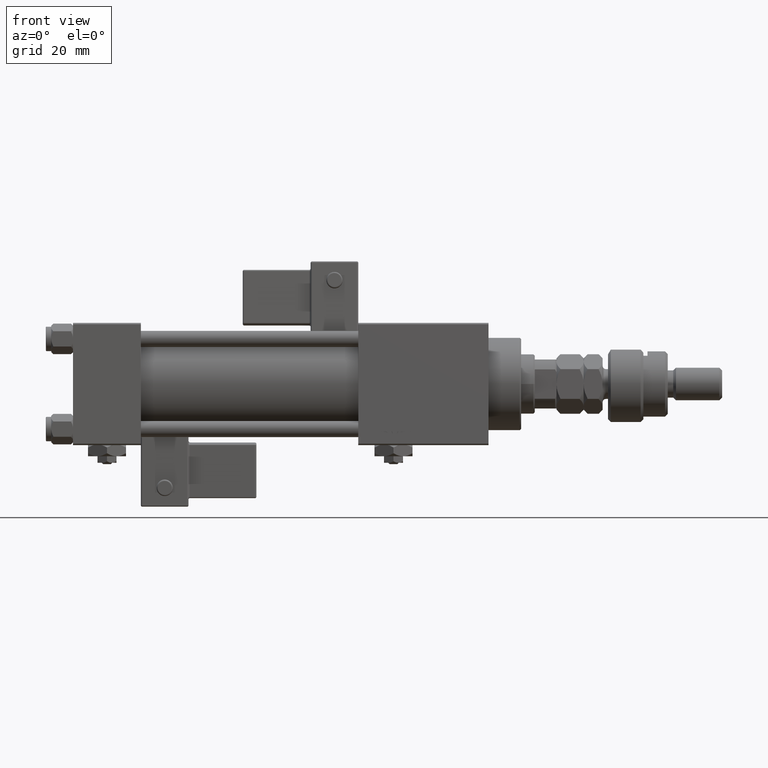
[diagram: clean part render]
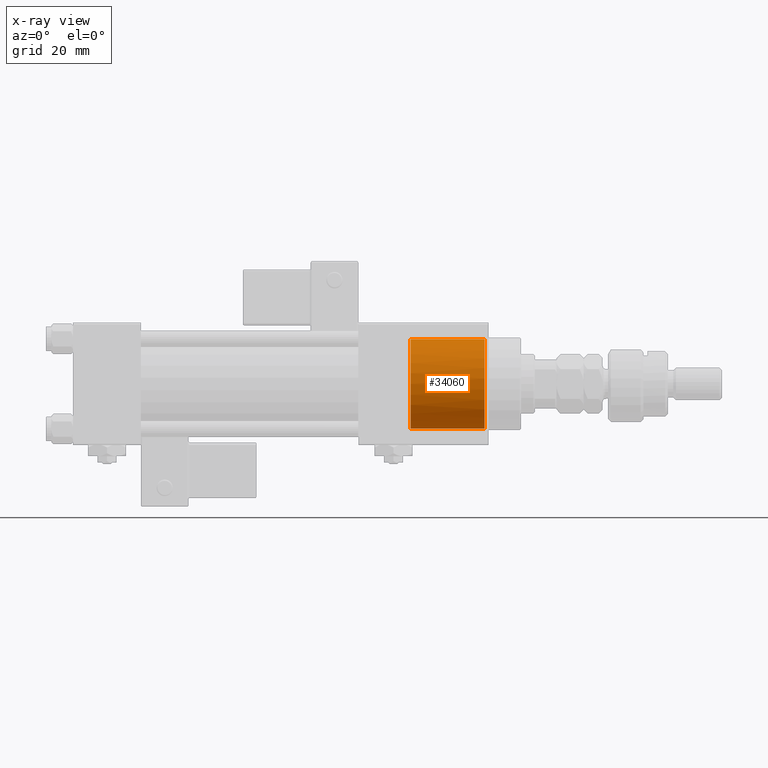
[diagram: x-ray — body ghosted, one internal face saturated and labeled with its STEP entity id]
A machine part, front view, then the same camera in x-ray: the body is ghosted and one INTERNAL B-rep face — a face not visible from any outside direction — is saturated and labeled: STEP entity #34060.
In plain terms, the highlighted cylindrical surface (partial cylindrical patch) has radius 16.5 mm, axis along (1, 0, 0).
Its self-contained STEP definition (entity closure, byte-faithful):
#26 = ORIENTED_EDGE ( 'NONE', *, *, #34324, .T. ) ;
#283 = CARTESIAN_POINT ( 'NONE',  ( 124.3000000000000256, -1.899052395275035776, -16.39035081991841380 ) ) ;
#345 = DIRECTION ( 'NONE',  ( 1.000000000000000000, -0.000000000000000000, -0.000000000000000000 ) ) ;
#2883 = CARTESIAN_POINT ( 'NONE',  ( 124.5800000000000125, 2.020172399822898567E-15, 16.50000000000000000 ) ) ;
#5055 = VERTEX_POINT ( 'NONE', #51792 ) ;
#5292 = EDGE_CURVE ( 'NONE', #28690, #5055, #10509, .T. ) ;
#6576 = CARTESIAN_POINT ( 'NONE',  ( 124.5800000000000125, -0.3226077776615700610, -16.49999999999999645 ) ) ;
#8065 = CARTESIAN_POINT ( 'NONE',  ( 124.3000000000000256, 0.000000000000000000, 0.000000000000000000 ) ) ;
#8328 = CARTESIAN_POINT ( 'NONE',  ( 124.3000000000000256, 2.020667218593133100E-15, 16.50000000000000000 ) ) ;
#8890 = EDGE_CURVE ( 'NONE', #28690, #22318, #53989, .T. ) ;
#9420 = VECTOR ( 'NONE', #26338, 1000.000000000000000 ) ;
#9680 = ORIENTED_EDGE ( 'NONE', *, *, #8890, .T. ) ;
#10020 = CARTESIAN_POINT ( 'NONE',  ( 124.3928892406244984, -1.590897540048155312, 16.42605488887727461 ) ) ;
#10509 = LINE ( 'NONE', #11082, #28980 ) ;
#10882 = CIRCLE ( 'NONE', #51680, 16.50000000000000000 ) ;
#11082 = CARTESIAN_POINT ( 'NONE',  ( 124.3000000000000256, 0.000000000000000000, -16.50000000000000000 ) ) ;
#11219 = CARTESIAN_POINT ( 'NONE',  ( 124.4625232366521175, -1.278516620530486980, -16.45344826064653176 ) ) ;
#11805 = VERTEX_POINT ( 'NONE', #21110 ) ;
#13073 = AXIS2_PLACEMENT_3D ( 'NONE', #36050, #345, #55147 ) ;
#13564 = LINE ( 'NONE', #8328, #9420 ) ;
#16292 = CARTESIAN_POINT ( 'NONE',  ( 124.5800000000000125, -4.948187961943675981E-19, -16.50000000000000000 ) ) ;
#17870 = CARTESIAN_POINT ( 'NONE',  ( 124.3000000000000256, -1.899052395275042660, 16.39035081991841380 ) ) ;
#18033 = DIRECTION ( 'NONE',  ( 1.000000000000000000, 0.000000000000000000, 0.000000000000000000 ) ) ;
#18161 = CARTESIAN_POINT ( 'NONE',  ( 124.4625232366521175, -1.278516620530491421, 16.45344826064653176 ) ) ;
#18742 = VERTEX_POINT ( 'NONE', #2883 ) ;
#21110 = CARTESIAN_POINT ( 'NONE',  ( 151.5000000000000284, 2.020667218593133100E-15, 16.50000000000000000 ) ) ;
#22066 = AXIS2_PLACEMENT_3D ( 'NONE', #44458, #18033, #26753 ) ;
#22220 = CARTESIAN_POINT ( 'NONE',  ( 124.5800000000000125, -0.3226077776615698389, 16.49999999999999645 ) ) ;
#22318 = VERTEX_POINT ( 'NONE', #283 ) ;
#22515 = EDGE_CURVE ( 'NONE', #41900, #22318, #10882, .T. ) ;
#23994 = CARTESIAN_POINT ( 'NONE',  ( 124.5800000000000125, -4.948187961943675981E-19, -16.50000000000000000 ) ) ;
#24287 = CARTESIAN_POINT ( 'NONE',  ( 124.5560906815446600, -0.6453575044926550541, -16.49042383039745374 ) ) ;
#24556 = EDGE_CURVE ( 'NONE', #11805, #5055, #52715, .T. ) ;
#24635 = DIRECTION ( 'NONE',  ( 0.000000000000000000, 0.000000000000000000, -1.000000000000000000 ) ) ;
#26338 = DIRECTION ( 'NONE',  ( 1.000000000000000000, -0.000000000000000000, -0.000000000000000000 ) ) ;
#26753 = DIRECTION ( 'NONE',  ( 0.000000000000000000, 0.000000000000000000, 1.000000000000000000 ) ) ;
#28690 = VERTEX_POINT ( 'NONE', #16292 ) ;
#28945 = CARTESIAN_POINT ( 'NONE',  ( 124.3000000000000256, -1.899052395275035776, -16.39035081991841380 ) ) ;
#28980 = VECTOR ( 'NONE', #46224, 1000.000000000000000 ) ;
#29298 = ORIENTED_EDGE ( 'NONE', *, *, #5292, .F. ) ;
#33845 = B_SPLINE_CURVE_WITH_KNOTS ( 'NONE', 3,
 ( #54468, #22220, #39943, #18161, #10020, #17870 ),
 .UNSPECIFIED., .F., .F.,
 ( 4, 2, 4 ),
 ( 0.001922561461481036042, 0.002880296703329132419, 0.003838031945177228579 ),
 .UNSPECIFIED. ) ;
#34060 = ADVANCED_FACE ( 'NONE', ( #35762 ), #50769, .F. ) ;
#34324 = EDGE_CURVE ( 'NONE', #18742, #11805, #13564, .T. ) ;
#35757 = ORIENTED_EDGE ( 'NONE', *, *, #22515, .F. ) ;
#35762 = FACE_OUTER_BOUND ( 'NONE', #50415, .T. ) ;
#36050 = CARTESIAN_POINT ( 'NONE',  ( 124.3000000000000256, 0.000000000000000000, 0.000000000000000000 ) ) ;
#37550 = EDGE_CURVE ( 'NONE', #18742, #41900, #33845, .T. ) ;
#39132 = DIRECTION ( 'NONE',  ( 1.000000000000000000, 0.000000000000000000, 0.000000000000000000 ) ) ;
#39943 = CARTESIAN_POINT ( 'NONE',  ( 124.5560906815446600, -0.6453575044926566084, 16.49042383039745374 ) ) ;
#40653 = ORIENTED_EDGE ( 'NONE', *, *, #37550, .F. ) ;
#41900 = VERTEX_POINT ( 'NONE', #53923 ) ;
#41950 = ORIENTED_EDGE ( 'NONE', *, *, #24556, .T. ) ;
#42001 = CARTESIAN_POINT ( 'NONE',  ( 124.3928892406244984, -1.590897540048149539, -16.42605488887727461 ) ) ;
#44458 = CARTESIAN_POINT ( 'NONE',  ( 151.5000000000000284, 0.000000000000000000, 0.000000000000000000 ) ) ;
#46224 = DIRECTION ( 'NONE',  ( 1.000000000000000000, -0.000000000000000000, -0.000000000000000000 ) ) ;
#50415 = EDGE_LOOP ( 'NONE', ( #40653, #26, #41950, #29298, #9680, #35757 ) ) ;
#50769 = CYLINDRICAL_SURFACE ( 'NONE', #13073, 16.50000000000000000 ) ;
#51680 = AXIS2_PLACEMENT_3D ( 'NONE', #8065, #39132, #24635 ) ;
#51792 = CARTESIAN_POINT ( 'NONE',  ( 151.5000000000000284, 0.000000000000000000, -16.50000000000000000 ) ) ;
#52715 = CIRCLE ( 'NONE', #22066, 16.50000000000000000 ) ;
#53923 = CARTESIAN_POINT ( 'NONE',  ( 124.3000000000000256, -1.899052395275042660, 16.39035081991841380 ) ) ;
#53989 = B_SPLINE_CURVE_WITH_KNOTS ( 'NONE', 3,
 ( #23994, #6576, #24287, #11219, #42001, #28945 ),
 .UNSPECIFIED., .F., .F.,
 ( 4, 2, 4 ),
 ( 0.001922561461481044499, 0.002880296703329136322, 0.003838031945177228579 ),
 .UNSPECIFIED. ) ;
#54468 = CARTESIAN_POINT ( 'NONE',  ( 124.5800000000000125, 2.020172399822898567E-15, 16.50000000000000000 ) ) ;
#55147 = DIRECTION ( 'NONE',  ( 0.000000000000000000, 0.000000000000000000, -1.000000000000000000 ) ) ;